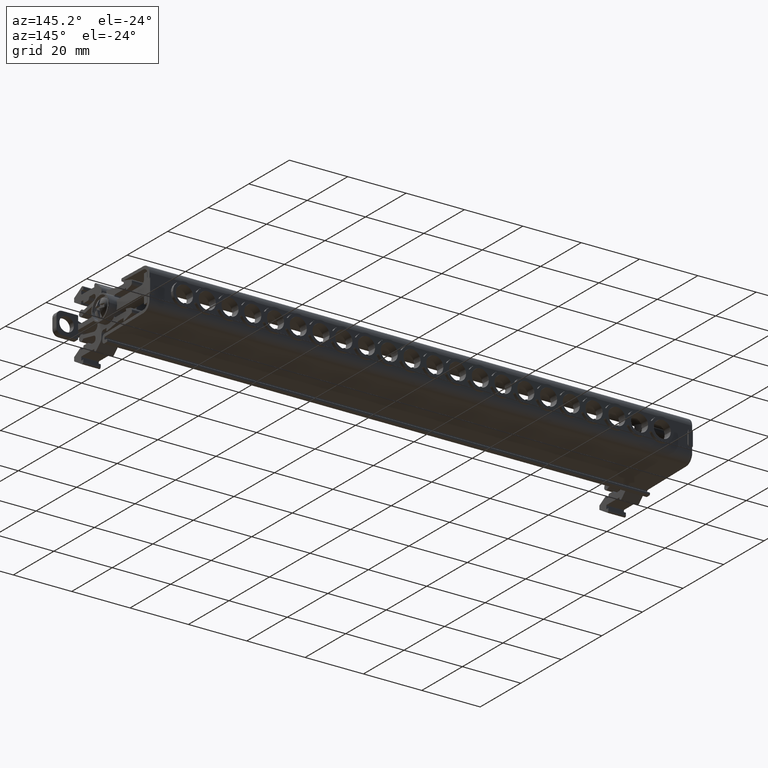
[diagram: clean part render]
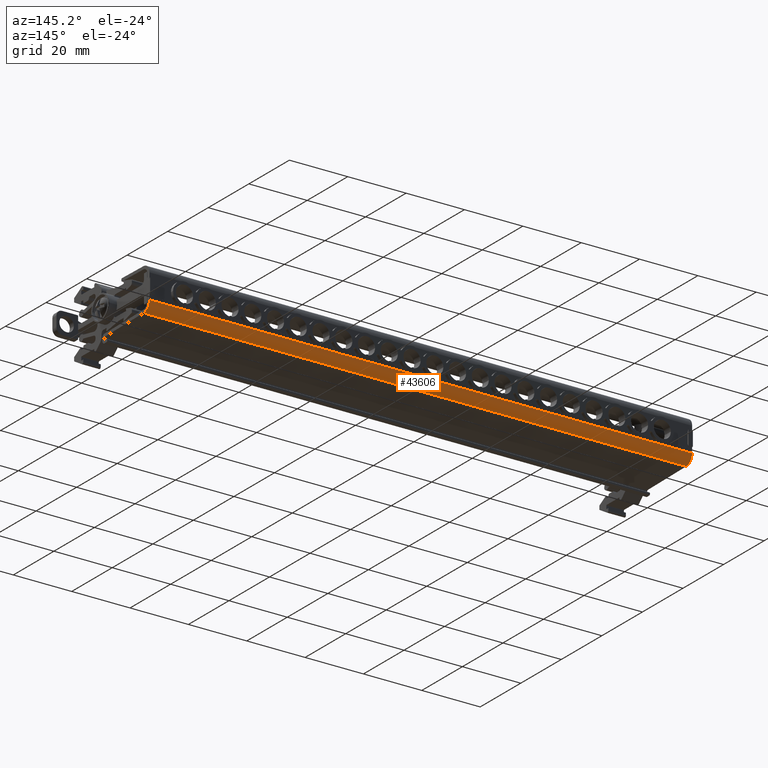
[diagram: same view with one face highlighted and labeled with its STEP entity id]
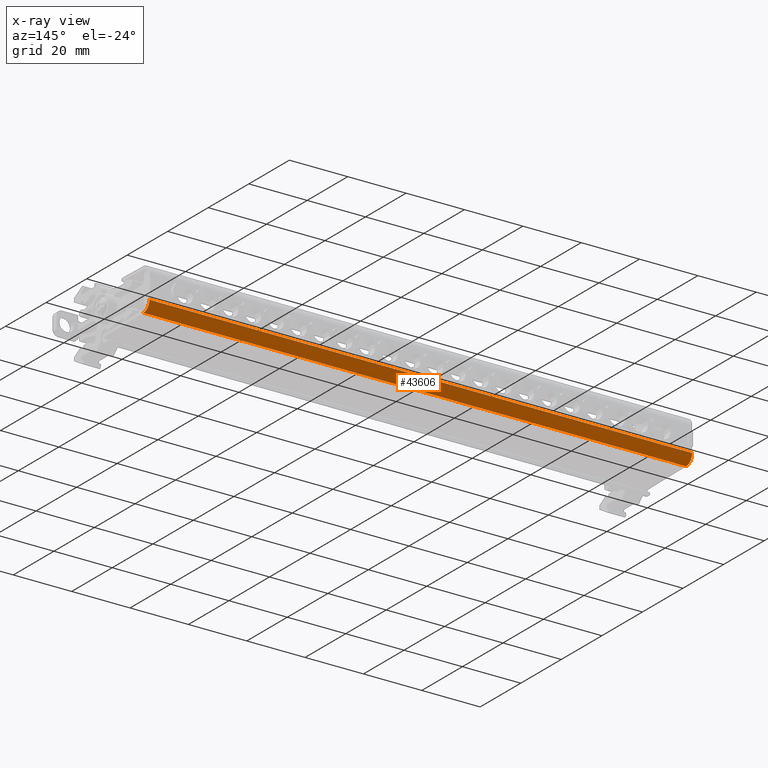
[diagram: x-ray of the same camera — body ghosted, the highlighted face saturated]
A machine part, auxiliary view. The second image highlights one B-rep face of the part: STEP entity #43606.
The next image is the same camera in x-ray: the body ghosted, the highlighted face saturated — about 0% of this face is hidden behind the body in this view.
In plain terms, the highlighted cylindrical surface (edge-blend (fillet) strip) has radius 2.9989 mm, axis along (1, 0, 0).
Its self-contained STEP definition (entity closure, byte-faithful):
#503 = VECTOR ( 'NONE', #29763, 1000.000000000000000 ) ;
#546 = VECTOR ( 'NONE', #29873, 1000.000000000000000 ) ;
#9171 = EDGE_CURVE ( 'NONE', #13122, #13195, #30845, .T. ) ;
#9188 = EDGE_CURVE ( 'NONE', #40106, #40191, #15241, .T. ) ;
#9463 = EDGE_CURVE ( 'NONE', #40162, #13195, #22102, .T. ) ;
#9496 = EDGE_CURVE ( 'NONE', #40115, #13122, #22116, .T. ) ;
#13122 = VERTEX_POINT ( 'NONE', #45611 ) ;
#13195 = VERTEX_POINT ( 'NONE', #45703 ) ;
#15241 = B_SPLINE_CURVE_WITH_KNOTS ( 'NONE', 3,
 ( #30885, #30883, #30900, #30904, #30893 ),
 .UNSPECIFIED., .F., .F.,
 ( 4, 1, 4 ),
 ( 8.326672684688674100E-017, 0.0005318935624353676700, 0.001063787124870652100 ),
 .UNSPECIFIED. ) ;
#22102 = CIRCLE ( 'NONE', #22109, 2.998863636113988700 ) ;
#22109 = AXIS2_PLACEMENT_3D ( 'NONE', #37560, #37548, #37563 ) ;
#22116 = CIRCLE ( 'NONE', #22119, 2.998863636113988700 ) ;
#22119 = AXIS2_PLACEMENT_3D ( 'NONE', #36754, #36867, #36822 ) ;
#22210 = VECTOR ( 'NONE', #30860, 1000.000000000000000 ) ;
#22740 = AXIS2_PLACEMENT_3D ( 'NONE', #23563, #23553, #23520 ) ;
#23518 = CYLINDRICAL_SURFACE ( 'NONE', #22740, 2.998863636113985500 ) ;
#23520 = DIRECTION ( 'NONE',  ( -2.313841089786546000E-015, 1.619688762850582200E-014, 1.000000000000000000 ) ) ;
#23553 = DIRECTION ( 'NONE',  ( 1.000000000000000000, 1.123605221868000100E-014, 2.470852055923969000E-015 ) ) ;
#23561 = FACE_OUTER_BOUND ( 'NONE', #39094, .T. ) ;
#23563 = CARTESIAN_POINT ( 'NONE',  ( 10.99789896013849200, -24.79683233985518600, 91.79530774263992000 ) ) ;
#27719 = CARTESIAN_POINT ( 'NONE',  ( 36.84134630657391800, -21.79796870373936800, 91.79530774264009100 ) ) ;
#27725 = CARTESIAN_POINT ( 'NONE',  ( -82.71658967541789300, -21.79796870374072200, 91.79530774263891100 ) ) ;
#27775 = CARTESIAN_POINT ( 'NONE',  ( 103.2844330507413100, -21.79796870373952100, 91.79530774264065900 ) ) ;
#27816 = CARTESIAN_POINT ( 'NONE',  ( 37.90513343144448300, -21.79796870373936500, 91.79530774263999100 ) ) ;
#29703 = CARTESIAN_POINT ( 'NONE',  ( 47.26948986892438900, -21.79796870373925100, 91.79530774264013400 ) ) ;
#29734 = LINE ( 'NONE', #29703, #503 ) ;
#29763 = DIRECTION ( 'NONE',  ( -1.000000000000000000, -1.123605221868026300E-014, -1.643677741129682900E-014 ) ) ;
#29836 = LINE ( 'NONE', #29854, #546 ) ;
#29854 = CARTESIAN_POINT ( 'NONE',  ( -82.56664649360089900, -21.79796870374072200, 91.79530774263891100 ) ) ;
#29873 = DIRECTION ( 'NONE',  ( 1.000000000000000000, 1.123605221868000100E-014, 2.470852055923969000E-015 ) ) ;
#30837 = CARTESIAN_POINT ( 'NONE',  ( 10.99789896013842300, -24.74449495282382100, 88.79690084798305300 ) ) ;
#30845 = LINE ( 'NONE', #30837, #22210 ) ;
#30860 = DIRECTION ( 'NONE',  ( 1.000000000000000000, 1.123605221868000100E-014, 2.470852055923969000E-015 ) ) ;
#30883 = CARTESIAN_POINT ( 'NONE',  ( 37.01864416071892800, -21.79796870373937500, 91.77495352822296600 ) ) ;
#30885 = CARTESIAN_POINT ( 'NONE',  ( 36.84134630657391800, -21.79796870373936800, 91.79530774264009100 ) ) ;
#30893 = CARTESIAN_POINT ( 'NONE',  ( 37.90513343144448300, -21.79796870373936500, 91.79530774263999100 ) ) ;
#30900 = CARTESIAN_POINT ( 'NONE',  ( 37.37323986900823100, -21.79827717778168500, 91.75483276014763600 ) ) ;
#30904 = CARTESIAN_POINT ( 'NONE',  ( 37.72783557730036800, -21.79796870373936500, 91.77495352822299400 ) ) ;
#32697 = ORIENTED_EDGE ( 'NONE', *, *, #9188, .T. ) ;
#32702 = ORIENTED_EDGE ( 'NONE', *, *, #9463, .T. ) ;
#32717 = ORIENTED_EDGE ( 'NONE', *, *, #43169, .F. ) ;
#32736 = ORIENTED_EDGE ( 'NONE', *, *, #9171, .F. ) ;
#32740 = ORIENTED_EDGE ( 'NONE', *, *, #43199, .T. ) ;
#32742 = ORIENTED_EDGE ( 'NONE', *, *, #9496, .F. ) ;
#36754 = CARTESIAN_POINT ( 'NONE',  ( -82.71658967541780800, -24.79683233985621300, 91.79530774264002000 ) ) ;
#36822 = DIRECTION ( 'NONE',  ( -9.255364359146174600E-015, 1.000000000000000000, -3.702145743658469800E-014 ) ) ;
#36867 = DIRECTION ( 'NONE',  ( -1.000000000000000000, -1.123605221868000100E-014, -2.470852055923969000E-015 ) ) ;
#37548 = DIRECTION ( 'NONE',  ( -1.000000000000000000, -1.123605221868026300E-014, -1.643677741129682900E-014 ) ) ;
#37560 = CARTESIAN_POINT ( 'NONE',  ( 103.2844330507412800, -24.79683233985508300, 91.79530774264176800 ) ) ;
#37563 = DIRECTION ( 'NONE',  ( -9.255364359146174600E-015, 1.000000000000000000, -3.702145743658469800E-014 ) ) ;
#39094 = EDGE_LOOP ( 'NONE', ( #32740, #32697, #32717, #32702, #32736, #32742 ) ) ;
#40106 = VERTEX_POINT ( 'NONE', #27719 ) ;
#40115 = VERTEX_POINT ( 'NONE', #27725 ) ;
#40162 = VERTEX_POINT ( 'NONE', #27775 ) ;
#40191 = VERTEX_POINT ( 'NONE', #27816 ) ;
#43169 = EDGE_CURVE ( 'NONE', #40162, #40191, #29734, .T. ) ;
#43199 = EDGE_CURVE ( 'NONE', #40115, #40106, #29836, .T. ) ;
#43606 = ADVANCED_FACE ( 'NONE', ( #23561 ), #23518, .T. ) ;
#45611 = CARTESIAN_POINT ( 'NONE',  ( -82.71658967541777900, -24.74449495282489800, 88.79690084798311000 ) ) ;
#45703 = CARTESIAN_POINT ( 'NONE',  ( 103.2844330507413100, -24.74449495282371800, 88.79690084798485800 ) ) ;